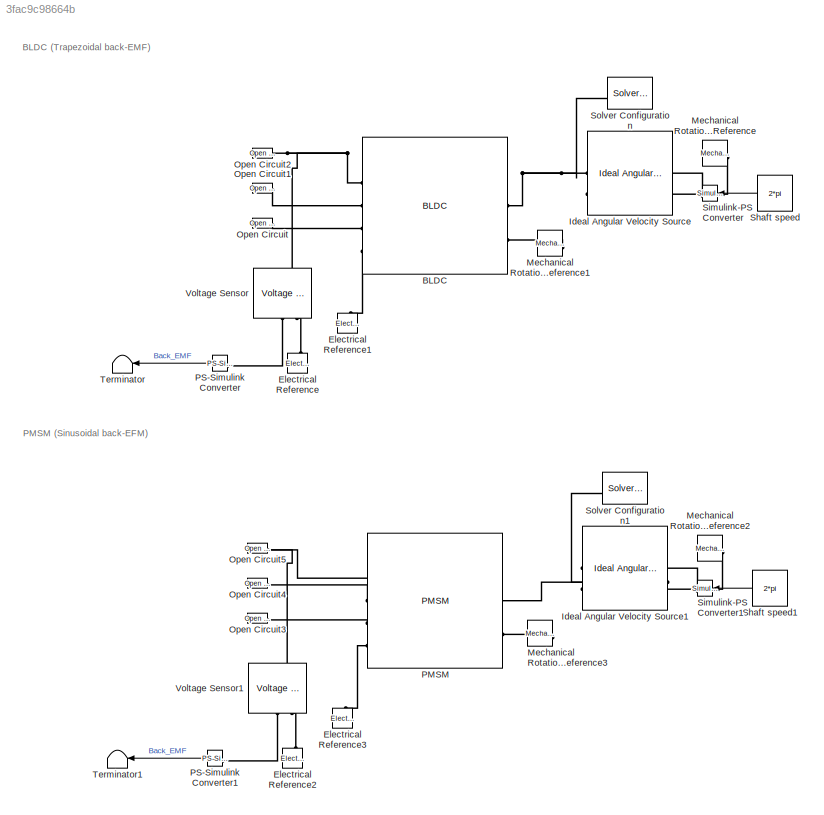
MODEL slx_3fac9c98664b
KIND model
CONFIG AbsTol = auto
CONFIG EnableMultiTasking = off
CONFIG FixedStep = auto
CONFIG MaxStep = auto
CONFIG MinStep = auto
CONFIG RelTol = 1e-3
CONFIG SampleTimeConstraint = Unconstrained
CONFIG SolverName = VariableStepAuto
CONFIG StartTime = 0.0
CONFIG StopTime = 10.0
BLOCK [Reference] BLDC  REF=ee_lib/Electromechanical/Permanent Magnet/BLDC
  SourceBlock = ee_lib/Electromechanical/Permanent Magnet/BLDC
  SourceType = BLDC
BLOCK [Reference] Electrical Reference  REF=fl_lib/Electrical/Electrical Elements/Electrical Reference
  NameLocation = right
  SourceBlock = fl_lib/Electrical/Electrical Elements/Electrical Reference
  SourceType = Electrical Reference
BLOCK [Reference] Electrical Reference1  REF=fl_lib/Electrical/Electrical Elements/Electrical Reference
  NameLocation = right
  SourceBlock = fl_lib/Electrical/Electrical Elements/Electrical Reference
  SourceType = Electrical Reference
BLOCK [Reference] Electrical Reference2  REF=fl_lib/Electrical/Electrical Elements/Electrical Reference
  NameLocation = right
  SourceBlock = fl_lib/Electrical/Electrical Elements/Electrical Reference
  SourceType = Electrical Reference
BLOCK [Reference] Electrical Reference3  REF=fl_lib/Electrical/Electrical Elements/Electrical Reference
  NameLocation = right
  SourceBlock = fl_lib/Electrical/Electrical Elements/Electrical Reference
  SourceType = Electrical Reference
BLOCK [Reference] Ideal Angular Velocity Source  REF=fl_lib/Mechanical/Mechanical Sources/Ideal Angular
Velocity Source
  SourceBlock = fl_lib/Mechanical/Mechanical Sources/Ideal Angular\nVelocity Source
  SourceType = Ideal Angular\nVelocity Source
BLOCK [Reference] Ideal Angular Velocity Source1  REF=fl_lib/Mechanical/Mechanical Sources/Ideal Angular
Velocity Source
  SourceBlock = fl_lib/Mechanical/Mechanical Sources/Ideal Angular\nVelocity Source
  SourceType = Ideal Angular\nVelocity Source
BLOCK [Reference] Mechanical Rotational Reference  REF=fl_lib/Mechanical/Rotational Elements/Mechanical
Rotational Reference
  NameLocation = top
  SourceBlock = fl_lib/Mechanical/Rotational Elements/Mechanical\nRotational Reference
  SourceType = Mechanical\nRotational Reference
BLOCK [Reference] Mechanical Rotational Reference1  REF=fl_lib/Mechanical/Rotational Elements/Mechanical
Rotational Reference
  NameLocation = top
  SourceBlock = fl_lib/Mechanical/Rotational Elements/Mechanical\nRotational Reference
  SourceType = Mechanical\nRotational Reference
BLOCK [Reference] Mechanical Rotational Reference2  REF=fl_lib/Mechanical/Rotational Elements/Mechanical
Rotational Reference
  NameLocation = top
  SourceBlock = fl_lib/Mechanical/Rotational Elements/Mechanical\nRotational Reference
  SourceType = Mechanical\nRotational Reference
BLOCK [Reference] Mechanical Rotational Reference3  REF=fl_lib/Mechanical/Rotational Elements/Mechanical
Rotational Reference
  NameLocation = top
  SourceBlock = fl_lib/Mechanical/Rotational Elements/Mechanical\nRotational Reference
  SourceType = Mechanical\nRotational Reference
BLOCK [Reference] Open Circuit  REF=fl_lib/Electrical/Electrical Elements/Open Circuit
  SourceBlock = fl_lib/Electrical/Electrical Elements/Open Circuit
  SourceType = Open Circuit
BLOCK [Reference] Open Circuit1  REF=fl_lib/Electrical/Electrical Elements/Open Circuit
  SourceBlock = fl_lib/Electrical/Electrical Elements/Open Circuit
  SourceType = Open Circuit
BLOCK [Reference] Open Circuit2  REF=fl_lib/Electrical/Electrical Elements/Open Circuit
  SourceBlock = fl_lib/Electrical/Electrical Elements/Open Circuit
  SourceType = Open Circuit
BLOCK [Reference] Open Circuit3  REF=fl_lib/Electrical/Electrical Elements/Open Circuit
  SourceBlock = fl_lib/Electrical/Electrical Elements/Open Circuit
  SourceType = Open Circuit
BLOCK [Reference] Open Circuit4  REF=fl_lib/Electrical/Electrical Elements/Open Circuit
  SourceBlock = fl_lib/Electrical/Electrical Elements/Open Circuit
  SourceType = Open Circuit
BLOCK [Reference] Open Circuit5  REF=fl_lib/Electrical/Electrical Elements/Open Circuit
  SourceBlock = fl_lib/Electrical/Electrical Elements/Open Circuit
  SourceType = Open Circuit
BLOCK [Reference] PMSM  REF=ee_lib/Electromechanical/Permanent Magnet/PMSM
  SourceBlock = ee_lib/Electromechanical/Permanent Magnet/PMSM
  SourceType = PMSM
BLOCK [Reference] PS-Simulink Converter  REF=nesl_utility/PS-Simulink
Converter
  NameLocation = top
  SourceBlock = nesl_utility/PS-Simulink\nConverter
  SourceType = PS-Simulink\nConverter
BLOCK [Reference] PS-Simulink Converter1  REF=nesl_utility/PS-Simulink
Converter
  NameLocation = top
  SourceBlock = nesl_utility/PS-Simulink\nConverter
  SourceType = PS-Simulink\nConverter
BLOCK [Constant] Shaft speed
  Value = 2*pi
BLOCK [Constant] Shaft speed1
  Value = 2*pi
BLOCK [Reference] Simulink-PS Converter  REF=nesl_utility/Simulink-PS
Converter
  SourceBlock = nesl_utility/Simulink-PS\nConverter
  SourceType = Simulink-PS\nConverter
BLOCK [Reference] Simulink-PS Converter1  REF=nesl_utility/Simulink-PS
Converter
  SourceBlock = nesl_utility/Simulink-PS\nConverter
  SourceType = Simulink-PS\nConverter
BLOCK [Reference] Solver Configuration  REF=nesl_utility/Solver
Configuration
  NameLocation = top
  SourceBlock = nesl_utility/Solver\nConfiguration
  SourceType = Solver\nConfiguration
BLOCK [Reference] Solver Configuration1  REF=nesl_utility/Solver
Configuration
  NameLocation = top
  SourceBlock = nesl_utility/Solver\nConfiguration
  SourceType = Solver\nConfiguration
BLOCK [Terminator] Terminator
BLOCK [Terminator] Terminator1
BLOCK [Reference] Voltage Sensor  REF=fl_lib/Electrical/Electrical Sensors/Voltage Sensor
  NameLocation = right
  SourceBlock = fl_lib/Electrical/Electrical Sensors/Voltage Sensor
  SourceType = Voltage Sensor
BLOCK [Reference] Voltage Sensor1  REF=fl_lib/Electrical/Electrical Sensors/Voltage Sensor
  NameLocation = right
  SourceBlock = fl_lib/Electrical/Electrical Sensors/Voltage Sensor
  SourceType = Voltage Sensor
ANNOTATION (root): BLDC (Trapezoidal back-EMF)
ANNOTATION (root): PMSM (Sinusoidal back-EFM)
LINE PS-Simulink Converter1:1 -> Terminator1:1
LINE PS-Simulink Converter:1 -> Terminator:1
LINE Shaft speed1:1 -> Simulink-PS Converter1:1
LINE Shaft speed:1 -> Simulink-PS Converter:1
PNET net1: BLDC:LConn1 -- Open Circuit2:LConn1 -- Voltage Sensor:LConn1
PLINE BLDC:LConn2 -- Open Circuit1:LConn1
PLINE BLDC:LConn3 -- Open Circuit:LConn1
PLINE BLDC:LConn4 -- Electrical Reference1:LConn1
PNET net2: BLDC:RConn1 -- Ideal Angular Velocity Source:LConn1 -- Solver Configuration:RConn1
PLINE BLDC:RConn2 -- Mechanical Rotational Reference1:LConn1
PLINE Electrical Reference2:LConn1 -- Voltage Sensor1:RConn2
PLINE Electrical Reference3:LConn1 -- PMSM:LConn4
PLINE Electrical Reference:LConn1 -- Voltage Sensor:RConn2
PNET net3: Ideal Angular Velocity Source1:LConn1 -- PMSM:RConn1 -- Solver Configuration1:RConn1
PLINE Ideal Angular Velocity Source1:RConn1 -- Simulink-PS Converter1:RConn1
PLINE Ideal Angular Velocity Source1:RConn2 -- Mechanical Rotational Reference2:LConn1
PLINE Ideal Angular Velocity Source:RConn1 -- Simulink-PS Converter:RConn1
PLINE Ideal Angular Velocity Source:RConn2 -- Mechanical Rotational Reference:LConn1
PLINE Mechanical Rotational Reference3:LConn1 -- PMSM:RConn2
PLINE Open Circuit3:LConn1 -- PMSM:LConn3
PLINE Open Circuit4:LConn1 -- PMSM:LConn2
PNET net4: Open Circuit5:LConn1 -- PMSM:LConn1 -- Voltage Sensor1:LConn1
PLINE PS-Simulink Converter1:LConn1 -- Voltage Sensor1:RConn1
PLINE PS-Simulink Converter:LConn1 -- Voltage Sensor:RConn1
note: PNET lines group multi-terminal physical nets as a canonical sorted terminal list (undirected conserving connections); 2-terminal nets keep the pairwise PLINE form
